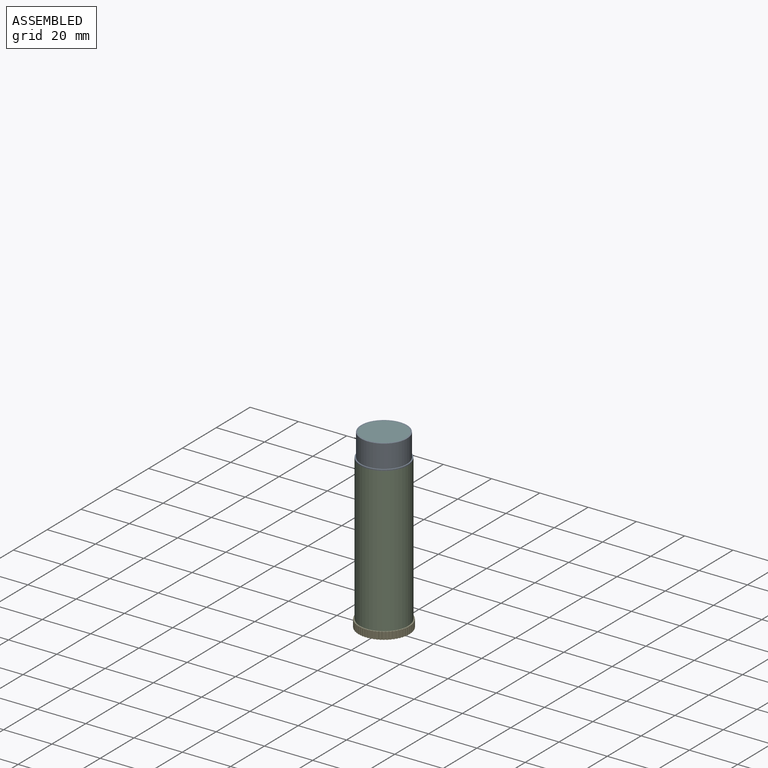
[diagram: assembled view]
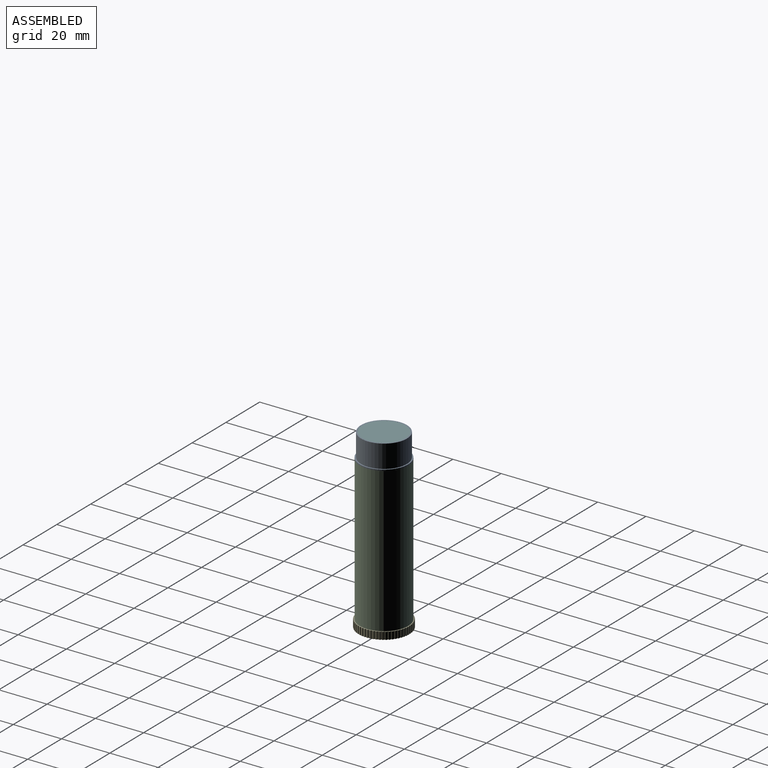
[diagram: assembled view, second angle]
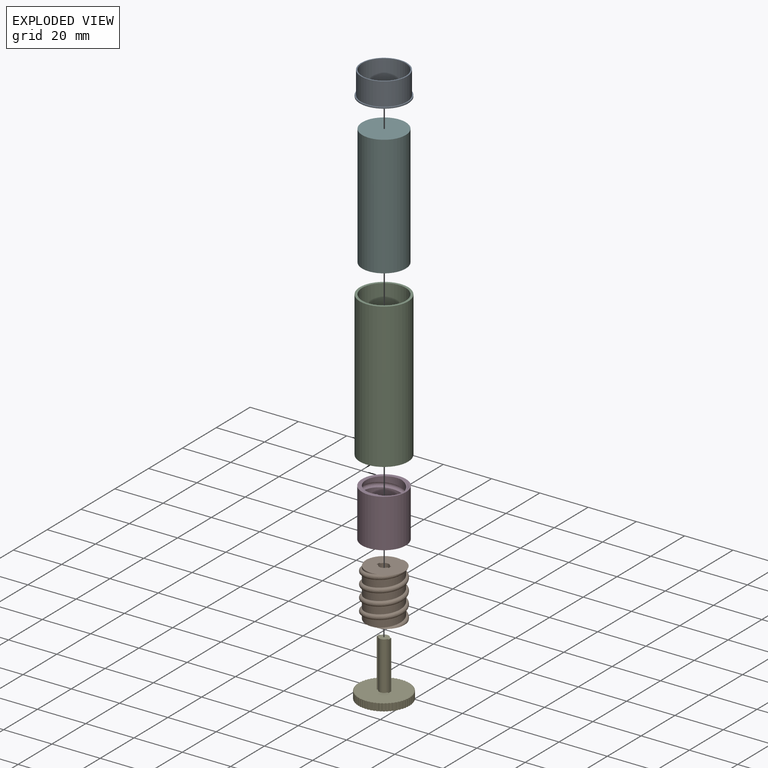
[diagram: exploded view]
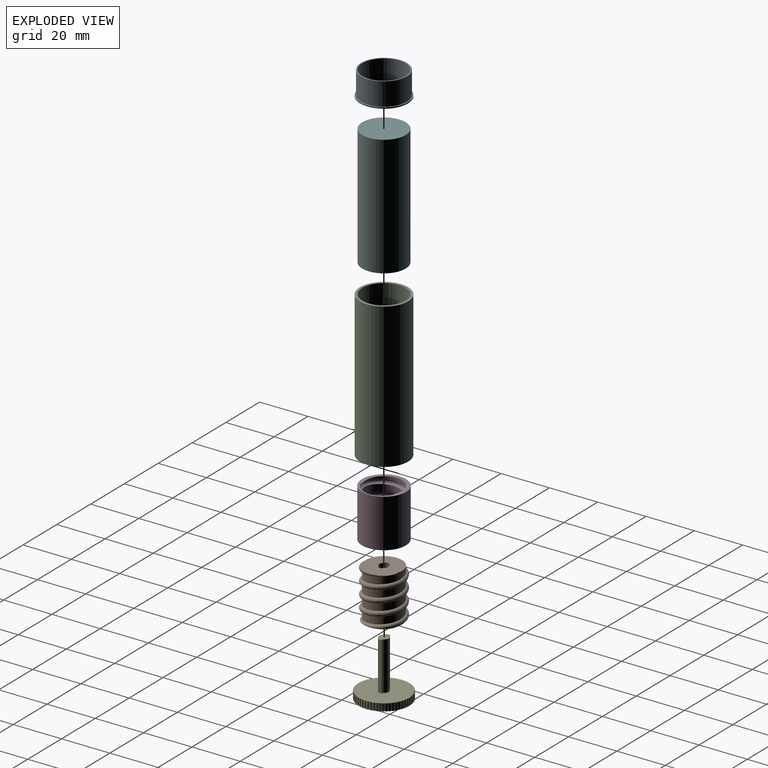
[diagram: exploded view, second angle]
ASSEMBLY  parts=6 mates=5
PART A: 6 faces, bbox 20x20x10 mm
  f0: plane 19x19mm, normal (0,0,1), area 29.1mm2, adj f3,f5
  f1: cylinder r=10mm len=20mm, axis (0,0,-1), area 31.4mm2, adj f2,f4
  f2: plane 20x20mm, normal (0,0,-1), area 59.7mm2, adj f1,f3
  f3: cylinder r=9mm len=18mm, axis (0,0,-1), area 565.5mm2, adj f0,f2
  f4: plane 20x20mm, normal (0,0,1), area 30.6mm2, adj f1,f5
  f5: cylinder r=9.5mm len=19mm, axis (0,0,-1), area 567.1mm2, adj f0,f4
PART B: 13 faces, bbox 19x21.9x25.3 mm
  f0: plane 16x15mm, normal (0,0,1), area 178.2mm2, adj f2,f3,f5,f6,f7,f8,f9,f10
  f1: plane 16x15mm, normal (0,0,-1), area 178.2mm2, adj f2,f4,f5,f6,f7,f8,f9,f10
  f2: cylinder r=7.5mm len=20mm, axis (0,0,-1), area 564mm2, adj f0,f1,f3,f4
  f3: bspline ~21.94x19mm, area 161mm2, adj f0,f2,f4
  f4: bspline ~21.94x19mm, area 483.2mm2, adj f1,f2,f3
  f5: cylinder r=2mm len=20mm, axis (0,0,-1), area 94.9mm2, adj f0,f1,f6,f12
  f6: plane 20x0.65mm, normal (0,1,0), area 12.9mm2, adj f0,f1,f5,f7
  f7: plane 20x1.5mm, normal (-1,0,0), area 30mm2, adj f0,f1,f6,f8
  f8: plane 20x0.65mm, normal (0,-1,0), area 12.9mm2, adj f0,f1,f7,f9
  f9: cylinder r=2mm len=20mm, axis (0,0,-1), area 94.9mm2, adj f0,f1,f8,f10
  f10: plane 20x0.65mm, normal (0,-1,0), area 12.9mm2, adj f0,f1,f9,f11
  f11: plane 20x1.5mm, normal (1,0,0), area 30mm2, adj f0,f1,f10,f12
  f12: plane 20x0.65mm, normal (0,1,0), area 12.9mm2, adj f0,f1,f5,f11
PART C: 4 faces, bbox 20x20x60 mm
  f0: cylinder r=10mm len=60mm, axis (0,0,-1), area 3769.9mm2, adj f1,f2
  f1: plane 20x20mm, normal (0,0,1), area 59.7mm2, adj f0,f3
  f2: plane 20x20mm, normal (0,0,-1), area 59.7mm2, adj f0,f3
  f3: cylinder r=9mm len=60mm, axis (0,0,-1), area 3392.9mm2, adj f1,f2
PART D: 6 faces, bbox 19x21.9x25.3 mm
  f0: cylinder r=7.52mm len=20mm, axis (0,0,-1), area 565.7mm2, adj f2,f3,f4,f5
  f1: cylinder r=9.1mm len=20mm, axis (0,0,-1), area 1143.2mm2, adj f2,f3
  f2: plane 18.19x18.19mm, normal (0,0,1), area 67mm2, adj f0,f1,f5
  f3: plane 18.19x18.19mm, normal (0,0,-1), area 67mm2, adj f0,f1,f4
  f4: bspline ~21.94x19mm, area 477.1mm2, adj f0,f3,f5
  f5: bspline ~21.94x19mm, area 159mm2, adj f0,f2,f4
PART E: 129 faces, bbox 21x21x23 mm
  f0: cylinder r=10.5mm len=3mm, axis (0,0,1), area 1.9mm2, adj f58,f59,f71,f128
  f1: cylinder r=10.5mm len=3mm, axis (0,0,1), area 1.9mm2, adj f58,f59,f127,f128
  f2: cylinder r=10.5mm len=3mm, axis (0,0,1), area 1.9mm2, adj f58,f59,f126,f127
  f3: cylinder r=10.5mm len=3mm, axis (0,0,1), area 1.9mm2, adj f58,f59,f125,f126
  f4: cylinder r=10.5mm len=3mm, axis (0,0,1), area 1.9mm2, adj f58,f59,f124,f125
  f5: cylinder r=10.5mm len=3mm, axis (0,0,1), area 1.9mm2, adj f58,f59,f123,f124
  f6: cylinder r=10.5mm len=3mm, axis (0,0,1), area 1.9mm2, adj f58,f59,f122,f123
  f7: cylinder r=10.5mm len=3mm, axis (0,0,1), area 1.9mm2, adj f58,f59,f121,f122
  f8: cylinder r=10.5mm len=3mm, axis (0,0,1), area 1.9mm2, adj f58,f59,f120,f121
  f9: cylinder r=10.5mm len=3mm, axis (0,0,1), area 1.9mm2, adj f58,f59,f119,f120
  f10: cylinder r=10.5mm len=3mm, axis (0,0,1), area 1.9mm2, adj f58,f59,f118,f119
  f11: cylinder r=10.5mm len=3mm, axis (0,0,1), area 1.9mm2, adj f58,f59,f117,f118
  f12: cylinder r=10.5mm len=3mm, axis (0,0,1), area 1.9mm2, adj f58,f59,f116,f117
  f13: cylinder r=10.5mm len=3mm, axis (0,0,1), area 1.9mm2, adj f58,f59,f115,f116
  f14: cylinder r=10.5mm len=3mm, axis (0,0,1), area 1.9mm2, adj f58,f59,f114,f115
  f15: cylinder r=10.5mm len=3mm, axis (0,0,1), area 1.9mm2, adj f58,f59,f113,f114
  f16: cylinder r=10.5mm len=3mm, axis (0,0,1), area 1.9mm2, adj f58,f59,f112,f113
  f17: cylinder r=10.5mm len=3mm, axis (0,0,1), area 1.9mm2, adj f58,f59,f111,f112
  f18: cylinder r=10.5mm len=3mm, axis (0,0,1), area 1.9mm2, adj f58,f59,f110,f111
  f19: cylinder r=10.5mm len=3mm, axis (0,0,1), area 1.9mm2, adj f58,f59,f109,f110
  f20: cylinder r=10.5mm len=3mm, axis (0,0,1), area 1.9mm2, adj f58,f59,f108,f109
  f21: cylinder r=10.5mm len=3mm, axis (0,0,1), area 1.9mm2, adj f58,f59,f107,f108
  f22: cylinder r=10.5mm len=3mm, axis (0,0,1), area 1.9mm2, adj f58,f59,f106,f107
  f23: cylinder r=10.5mm len=3mm, axis (0,0,1), area 1.9mm2, adj f58,f59,f105,f106
  f24: cylinder r=10.5mm len=3mm, axis (0,0,1), area 1.9mm2, adj f58,f59,f104,f105
  f25: cylinder r=10.5mm len=3mm, axis (0,0,1), area 1.9mm2, adj f58,f59,f103,f104
  f26: cylinder r=10.5mm len=3mm, axis (0,0,1), area 1.9mm2, adj f58,f59,f102,f103
  f27: cylinder r=10.5mm len=3mm, axis (0,0,1), area 1.9mm2, adj f58,f59,f101,f102
  f28: cylinder r=10.5mm len=3mm, axis (0,0,1), area 1.9mm2, adj f58,f59,f100,f101
  f29: cylinder r=10.5mm len=3mm, axis (0,0,1), area 1.9mm2, adj f58,f59,f99,f100
  f30: cylinder r=10.5mm len=3mm, axis (0,0,1), area 1.9mm2, adj f58,f59,f98,f99
  f31: cylinder r=10.5mm len=3mm, axis (0,0,1), area 1.9mm2, adj f58,f59,f97,f98
  f32: cylinder r=10.5mm len=3mm, axis (0,0,1), area 1.9mm2, adj f58,f59,f96,f97
  f33: cylinder r=10.5mm len=3mm, axis (0,0,1), area 1.9mm2, adj f58,f59,f95,f96
  f34: cylinder r=10.5mm len=3mm, axis (0,0,1), area 1.9mm2, adj f58,f59,f94,f95
  f35: cylinder r=10.5mm len=3mm, axis (0,0,1), area 1.9mm2, adj f58,f59,f93,f94
  f36: cylinder r=10.5mm len=3mm, axis (0,0,1), area 1.9mm2, adj f58,f59,f92,f93
  f37: cylinder r=10.5mm len=3mm, axis (0,0,1), area 1.9mm2, adj f58,f59,f91,f92
  f38: cylinder r=10.5mm len=3mm, axis (0,0,1), area 1.9mm2, adj f58,f59,f90,f91
  f39: cylinder r=10.5mm len=3mm, axis (0,0,1), area 2mm2, adj f58,f59,f89,f90
  f40: cylinder r=10.5mm len=3mm, axis (0,0,1), area 2mm2, adj f58,f59,f88,f89
  f41: cylinder r=10.5mm len=3mm, axis (0,0,1), area 2mm2, adj f58,f59,f87,f88
  f42: cylinder r=10.5mm len=3mm, axis (0,0,1), area 2mm2, adj f58,f59,f86,f87
  f43: cylinder r=10.5mm len=3mm, axis (0,0,1), area 2mm2, adj f58,f59,f85,f86
  f44: cylinder r=10.5mm len=3mm, axis (0,0,1), area 2mm2, adj f58,f59,f84,f85
  f45: cylinder r=10.5mm len=3mm, axis (0,0,1), area 2mm2, adj f58,f59,f83,f84
  f46: cylinder r=10.5mm len=3mm, axis (0,0,1), area 2mm2, adj f58,f59,f82,f83
  f47: cylinder r=10.5mm len=3mm, axis (0,0,1), area 2mm2, adj f58,f59,f81,f82
  f48: cylinder r=10.5mm len=3mm, axis (0,0,1), area 2mm2, adj f58,f59,f80,f81
  f49: cylinder r=10.5mm len=3mm, axis (0,0,1), area 2mm2, adj f58,f59,f79,f80
  f50: cylinder r=10.5mm len=3mm, axis (0,0,1), area 2mm2, adj f58,f59,f78,f79
  f51: cylinder r=10.5mm len=3mm, axis (0,0,1), area 2mm2, adj f58,f59,f77,f78
  f52: cylinder r=10.5mm len=3mm, axis (0,0,1), area 2mm2, adj f58,f59,f76,f77
  f53: cylinder r=10.5mm len=3mm, axis (0,0,1), area 2mm2, adj f58,f59,f75,f76
  f54: cylinder r=10.5mm len=3mm, axis (0,0,1), area 2mm2, adj f58,f59,f74,f75
  f55: cylinder r=10.5mm len=3mm, axis (0,0,1), area 2mm2, adj f58,f59,f73,f74
  f56: cylinder r=10.5mm len=3mm, axis (0,0,1), area 2mm2, adj f58,f59,f72,f73
  f57: cylinder r=10.5mm len=3mm, axis (0,0,1), area 2mm2, adj f58,f59,f71,f72
  f58: plane 21x21mm, normal (0,0,-1), area 57.2mm2, adj f0,f1,f2,f3,f4,f5,f6,f7
  f59: plane 21x21mm, normal (0,0,1), area 326.5mm2, adj f0,f1,f2,f3,f4,f5,f6,f7
  f60: cylinder r=9.5mm len=19mm, axis (0,0,1), area 119.4mm2, adj f58,f61
  f61: plane 19x19mm, normal (0,0,-1), area 283.5mm2, adj f60
  f62: cylinder r=2mm len=20mm, axis (0,0,-1), area 94.9mm2, adj f59,f63,f69,f70
  f63: plane 20x0.65mm, normal (0,-1,0), area 12.9mm2, adj f59,f62,f64,f70
  f64: plane 20x1.5mm, normal (1,0,0), area 30mm2, adj f59,f63,f65,f70
  f65: plane 20x0.65mm, normal (0,1,0), area 12.9mm2, adj f59,f64,f66,f70
  f66: cylinder r=2mm len=20mm, axis (0,0,-1), area 94.9mm2, adj f59,f65,f67,f70
  f67: plane 20x0.65mm, normal (0,1,0), area 12.9mm2, adj f59,f66,f68,f70
  f68: plane 20x1.5mm, normal (-1,0,0), area 30mm2, adj f59,f67,f69,f70
  f69: plane 20x0.65mm, normal (0,-1,0), area 12.9mm2, adj f59,f62,f68,f70
  f70: plane 5x4mm, normal (0,0,1), area 14.2mm2, adj f62,f63,f64,f65,f66,f67,f68,f69
  f71: cylinder r=0.25mm len=3mm, axis (0,0,1), area 2.3mm2, adj f0,f57,f58,f59
  f72: cylinder r=0.25mm len=3mm, axis (0,0,1), area 2.3mm2, adj f56,f57,f58,f59
  f73: cylinder r=0.25mm len=3mm, axis (0,0,1), area 2.3mm2, adj f55,f56,f58,f59
  f74: cylinder r=0.25mm len=3mm, axis (0,0,1), area 2.3mm2, adj f54,f55,f58,f59
  f75: cylinder r=0.25mm len=3mm, axis (0,0,1), area 2.3mm2, adj f53,f54,f58,f59
  f76: cylinder r=0.25mm len=3mm, axis (0,0,1), area 2.3mm2, adj f52,f53,f58,f59
  f77: cylinder r=0.25mm len=3mm, axis (0,0,1), area 2.3mm2, adj f51,f52,f58,f59
  f78: cylinder r=0.25mm len=3mm, axis (0,0,1), area 2.3mm2, adj f50,f51,f58,f59
  f79: cylinder r=0.25mm len=3mm, axis (0,0,1), area 2.3mm2, adj f49,f50,f58,f59
  f80: cylinder r=0.25mm len=3mm, axis (0,0,1), area 2.3mm2, adj f48,f49,f58,f59
  f81: cylinder r=0.25mm len=3mm, axis (0,0,1), area 2.3mm2, adj f47,f48,f58,f59
  f82: cylinder r=0.25mm len=3mm, axis (0,0,1), area 2.3mm2, adj f46,f47,f58,f59
  f83: cylinder r=0.25mm len=3mm, axis (0,0,1), area 2.3mm2, adj f45,f46,f58,f59
  f84: cylinder r=0.25mm len=3mm, axis (0,0,1), area 2.3mm2, adj f44,f45,f58,f59
  f85: cylinder r=0.25mm len=3mm, axis (0,0,1), area 2.3mm2, adj f43,f44,f58,f59
  f86: cylinder r=0.25mm len=3mm, axis (0,0,1), area 2.3mm2, adj f42,f43,f58,f59
  f87: cylinder r=0.25mm len=3mm, axis (0,0,1), area 2.3mm2, adj f41,f42,f58,f59
  f88: cylinder r=0.25mm len=3mm, axis (0,0,1), area 2.3mm2, adj f40,f41,f58,f59
  f89: cylinder r=0.25mm len=3mm, axis (0,0,1), area 2.3mm2, adj f39,f40,f58,f59
  f90: cylinder r=0.25mm len=3mm, axis (0,0,1), area 2.3mm2, adj f38,f39,f58,f59
  f91: cylinder r=0.25mm len=3mm, axis (0,0,1), area 2.3mm2, adj f37,f38,f58,f59
  f92: cylinder r=0.25mm len=3mm, axis (0,0,1), area 2.3mm2, adj f36,f37,f58,f59
  f93: cylinder r=0.25mm len=3mm, axis (0,0,1), area 2.3mm2, adj f35,f36,f58,f59
  f94: cylinder r=0.25mm len=3mm, axis (0,0,1), area 2.3mm2, adj f34,f35,f58,f59
  f95: cylinder r=0.25mm len=3mm, axis (0,0,1), area 2.3mm2, adj f33,f34,f58,f59
  f96: cylinder r=0.25mm len=3mm, axis (0,0,1), area 2.3mm2, adj f32,f33,f58,f59
  f97: cylinder r=0.25mm len=3mm, axis (0,0,1), area 2.3mm2, adj f31,f32,f58,f59
  f98: cylinder r=0.25mm len=3mm, axis (0,0,1), area 2.3mm2, adj f30,f31,f58,f59
  f99: cylinder r=0.25mm len=3mm, axis (0,0,1), area 2.3mm2, adj f29,f30,f58,f59
  f100: cylinder r=0.25mm len=3mm, axis (0,0,1), area 2.3mm2, adj f28,f29,f58,f59
  f101: cylinder r=0.25mm len=3mm, axis (0,0,1), area 2.3mm2, adj f27,f28,f58,f59
  f102: cylinder r=0.25mm len=3mm, axis (0,0,1), area 2.3mm2, adj f26,f27,f58,f59
  f103: cylinder r=0.25mm len=3mm, axis (0,0,1), area 2.3mm2, adj f25,f26,f58,f59
  f104: cylinder r=0.25mm len=3mm, axis (0,0,1), area 2.3mm2, adj f24,f25,f58,f59
  f105: cylinder r=0.25mm len=3mm, axis (0,0,1), area 2.3mm2, adj f23,f24,f58,f59
  f106: cylinder r=0.25mm len=3mm, axis (0,0,1), area 2.3mm2, adj f22,f23,f58,f59
  f107: cylinder r=0.25mm len=3mm, axis (0,0,1), area 2.3mm2, adj f21,f22,f58,f59
  f108: cylinder r=0.25mm len=3mm, axis (0,0,1), area 2.3mm2, adj f20,f21,f58,f59
  f109: cylinder r=0.25mm len=3mm, axis (0,0,1), area 2.3mm2, adj f19,f20,f58,f59
  f110: cylinder r=0.25mm len=3mm, axis (0,0,1), area 2.3mm2, adj f18,f19,f58,f59
  f111: cylinder r=0.25mm len=3mm, axis (0,0,1), area 2.3mm2, adj f17,f18,f58,f59
  f112: cylinder r=0.25mm len=3mm, axis (0,0,1), area 2.3mm2, adj f16,f17,f58,f59
  f113: cylinder r=0.25mm len=3mm, axis (0,0,1), area 2.3mm2, adj f15,f16,f58,f59
  f114: cylinder r=0.25mm len=3mm, axis (0,0,1), area 2.3mm2, adj f14,f15,f58,f59
  f115: cylinder r=0.25mm len=3mm, axis (0,0,1), area 2.3mm2, adj f13,f14,f58,f59
  f116: cylinder r=0.25mm len=3mm, axis (0,0,1), area 2.3mm2, adj f12,f13,f58,f59
  f117: cylinder r=0.25mm len=3mm, axis (0,0,1), area 2.3mm2, adj f11,f12,f58,f59
  f118: cylinder r=0.25mm len=3mm, axis (0,0,1), area 2.3mm2, adj f10,f11,f58,f59
  f119: cylinder r=0.25mm len=3mm, axis (0,0,1), area 2.3mm2, adj f9,f10,f58,f59
  f120: cylinder r=0.25mm len=3mm, axis (0,0,1), area 2.3mm2, adj f8,f9,f58,f59
  f121: cylinder r=0.25mm len=3mm, axis (0,0,1), area 2.3mm2, adj f7,f8,f58,f59
  f122: cylinder r=0.25mm len=3mm, axis (0,0,1), area 2.3mm2, adj f6,f7,f58,f59
  f123: cylinder r=0.25mm len=3mm, axis (0,0,1), area 2.3mm2, adj f5,f6,f58,f59
  f124: cylinder r=0.25mm len=3mm, axis (0,0,1), area 2.3mm2, adj f4,f5,f58,f59
  f125: cylinder r=0.25mm len=3mm, axis (0,0,1), area 2.3mm2, adj f3,f4,f58,f59
  f126: cylinder r=0.25mm len=3mm, axis (0,0,1), area 2.3mm2, adj f2,f3,f58,f59
  f127: cylinder r=0.25mm len=3mm, axis (0,0,1), area 2.3mm2, adj f1,f2,f58,f59
  f128: cylinder r=0.25mm len=3mm, axis (0,0,1), area 2.3mm2, adj f0,f1,f58,f59
PART F: 3 faces, bbox 18x18x50 mm
  f0: cylinder r=9mm len=50mm, axis (0,0,-1), area 2827.4mm2, adj f1,f2
  f1: plane 18x18mm, normal (0,0,1), area 254.5mm2, adj f0
  f2: plane 18x18mm, normal (0,0,-1), area 254.5mm2, adj f0
PLACE A t=(-7.22,12.49,-8.5)mm
PLACE B t=(-7.22,12.49,-8.5)mm
PLACE C t=(-7.22,12.49,-8.5)mm fixed
PLACE D t=(-7.22,12.49,-8.5)mm
PLACE E t=(-7.22,12.49,-8.5)mm
PLACE F t=(-7.22,12.49,-8.5)mm
MATE planar B.f9 <-> F.f0  axis (0,0,1) through (-7.22,12.49,11.5)mm
MATE revolute C.f0 <-> E.f66  axis (0,0,-1) through (-7.22,12.49,-8.5)mm
MATE cylindrical D.f1 <-> B.f5  axis (0,0,1) through (-7.22,12.49,-8.5)mm
MATE slider A.f1 <-> F.f0  axis (0,0,1) through (-7.22,12.49,61.5)mm
MATE slider B.f2 <-> E.f62  axis (0,0,1) through (-7.22,12.49,11.5)mm
